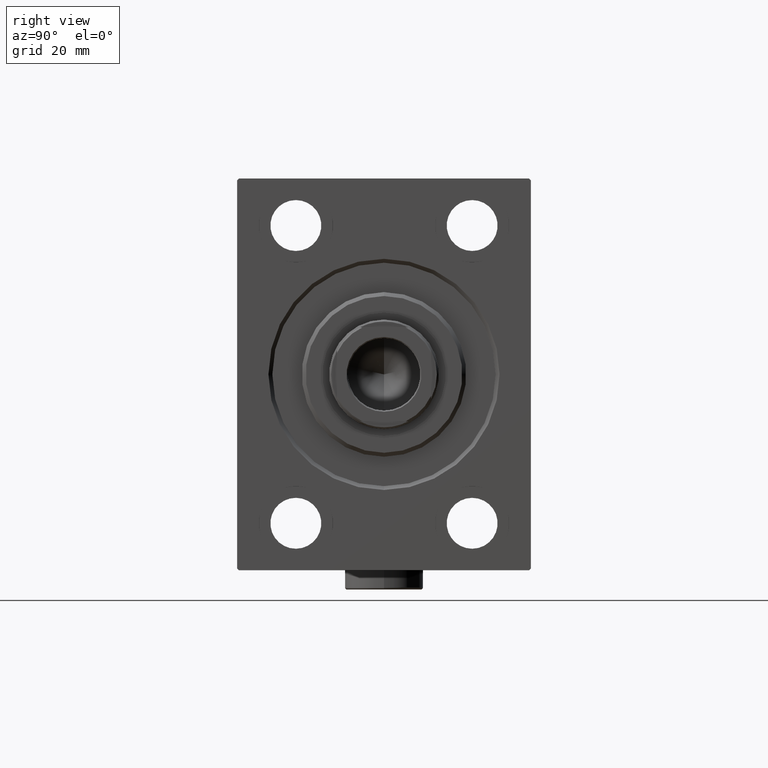
[diagram: clean part render]
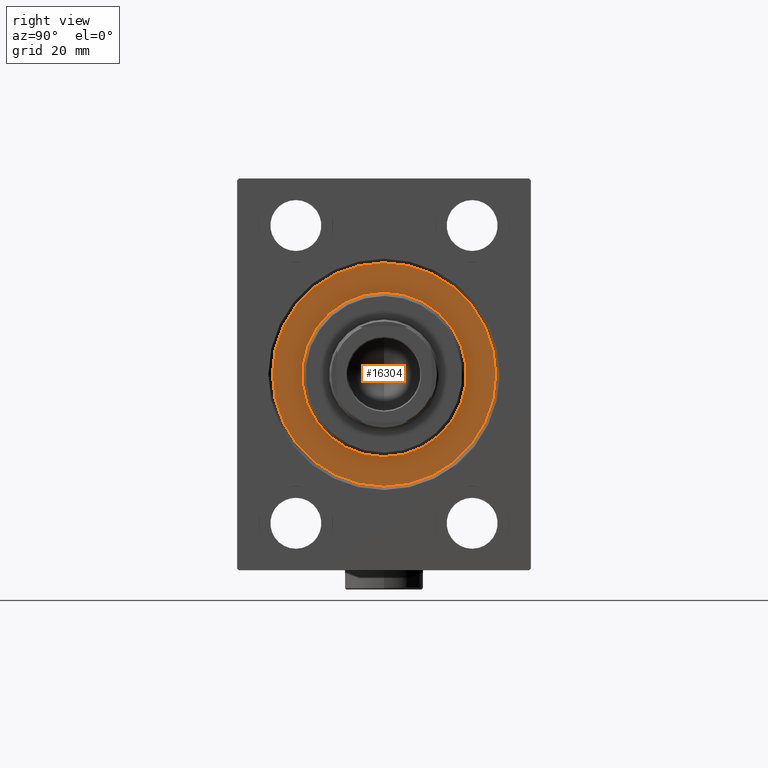
[diagram: same view with one face highlighted and labeled with its STEP entity id]
A machine part, right view. The second image highlights one B-rep face of the part: STEP entity #16304.
In plain terms, the highlighted planar face has unit normal (-1, 0, 0).
Its self-contained STEP definition (entity closure, byte-faithful):
#321 = EDGE_CURVE ( 'NONE', #19915, #3122, #41985, .T. ) ;
#945 = DIRECTION ( 'NONE',  ( -1.000000000000000000, 0.000000000000000000, 0.000000000000000000 ) ) ;
#1175 = DIRECTION ( 'NONE',  ( 0.000000000000000000, 0.000000000000000000, 1.000000000000000000 ) ) ;
#3122 = VERTEX_POINT ( 'NONE', #10236 ) ;
#3685 = AXIS2_PLACEMENT_3D ( 'NONE', #44233, #37264, #30085 ) ;
#7075 = AXIS2_PLACEMENT_3D ( 'NONE', #23526, #37248, #8893 ) ;
#7215 = EDGE_CURVE ( 'NONE', #17382, #28193, #12417, .T. ) ;
#7491 = CARTESIAN_POINT ( 'NONE',  ( 0.000000000000000000, 0.000000000000000000, -28.50000000000000000 ) ) ;
#8846 = CARTESIAN_POINT ( 'NONE',  ( 0.000000000000000000, 0.000000000000000000, 0.000000000000000000 ) ) ;
#8893 = DIRECTION ( 'NONE',  ( 0.000000000000000000, 0.000000000000000000, -1.000000000000000000 ) ) ;
#8921 = CIRCLE ( 'NONE', #3685, 28.50000000000000000 ) ;
#10236 = CARTESIAN_POINT ( 'NONE',  ( 0.000000000000000000, 2.571758278209441661E-15, -21.00000000000000000 ) ) ;
#10905 = AXIS2_PLACEMENT_3D ( 'NONE', #15332, #22069, #26481 ) ;
#11253 = EDGE_LOOP ( 'NONE', ( #22805, #37199 ) ) ;
#12344 = FACE_OUTER_BOUND ( 'NONE', #11253, .T. ) ;
#12417 = CIRCLE ( 'NONE', #10905, 28.50000000000000000 ) ;
#15332 = CARTESIAN_POINT ( 'NONE',  ( 0.000000000000000000, 0.000000000000000000, 0.000000000000000000 ) ) ;
#16304 = ADVANCED_FACE ( 'NONE', ( #19306, #12344 ), #40690, .F. ) ;
#17297 = ORIENTED_EDGE ( 'NONE', *, *, #321, .F. ) ;
#17382 = VERTEX_POINT ( 'NONE', #7491 ) ;
#19098 = EDGE_CURVE ( 'NONE', #28193, #17382, #8921, .T. ) ;
#19306 = FACE_BOUND ( 'NONE', #25262, .T. ) ;
#19915 = VERTEX_POINT ( 'NONE', #36107 ) ;
#21843 = CARTESIAN_POINT ( 'NONE',  ( 0.000000000000000000, 0.000000000000000000, 0.000000000000000000 ) ) ;
#22069 = DIRECTION ( 'NONE',  ( -1.000000000000000000, 0.000000000000000000, 0.000000000000000000 ) ) ;
#22805 = ORIENTED_EDGE ( 'NONE', *, *, #7215, .F. ) ;
#23526 = CARTESIAN_POINT ( 'NONE',  ( 0.000000000000000000, 0.000000000000000000, 0.000000000000000000 ) ) ;
#25262 = EDGE_LOOP ( 'NONE', ( #17297, #27842 ) ) ;
#26481 = DIRECTION ( 'NONE',  ( 0.000000000000000000, 0.000000000000000000, 1.000000000000000000 ) ) ;
#27842 = ORIENTED_EDGE ( 'NONE', *, *, #35935, .F. ) ;
#28193 = VERTEX_POINT ( 'NONE', #44723 ) ;
#30085 = DIRECTION ( 'NONE',  ( 0.000000000000000000, 0.000000000000000000, 1.000000000000000000 ) ) ;
#31094 = AXIS2_PLACEMENT_3D ( 'NONE', #8846, #945, #1175 ) ;
#31269 = AXIS2_PLACEMENT_3D ( 'NONE', #21843, #43226, #36016 ) ;
#32718 = CIRCLE ( 'NONE', #31269, 21.00000000000000000 ) ;
#35935 = EDGE_CURVE ( 'NONE', #3122, #19915, #32718, .T. ) ;
#36016 = DIRECTION ( 'NONE',  ( 0.000000000000000000, 0.000000000000000000, -1.000000000000000000 ) ) ;
#36107 = CARTESIAN_POINT ( 'NONE',  ( 0.000000000000000000, 0.000000000000000000, 21.00000000000000000 ) ) ;
#37199 = ORIENTED_EDGE ( 'NONE', *, *, #19098, .F. ) ;
#37248 = DIRECTION ( 'NONE',  ( 1.000000000000000000, -0.000000000000000000, 0.000000000000000000 ) ) ;
#37264 = DIRECTION ( 'NONE',  ( -1.000000000000000000, 0.000000000000000000, 0.000000000000000000 ) ) ;
#40690 = PLANE ( 'NONE',  #31094 ) ;
#41985 = CIRCLE ( 'NONE', #7075, 21.00000000000000000 ) ;
#43226 = DIRECTION ( 'NONE',  ( 1.000000000000000000, -0.000000000000000000, 0.000000000000000000 ) ) ;
#44233 = CARTESIAN_POINT ( 'NONE',  ( 0.000000000000000000, 0.000000000000000000, 0.000000000000000000 ) ) ;
#44723 = CARTESIAN_POINT ( 'NONE',  ( 0.000000000000000000, 3.490243377569956456E-15, 28.50000000000000000 ) ) ;